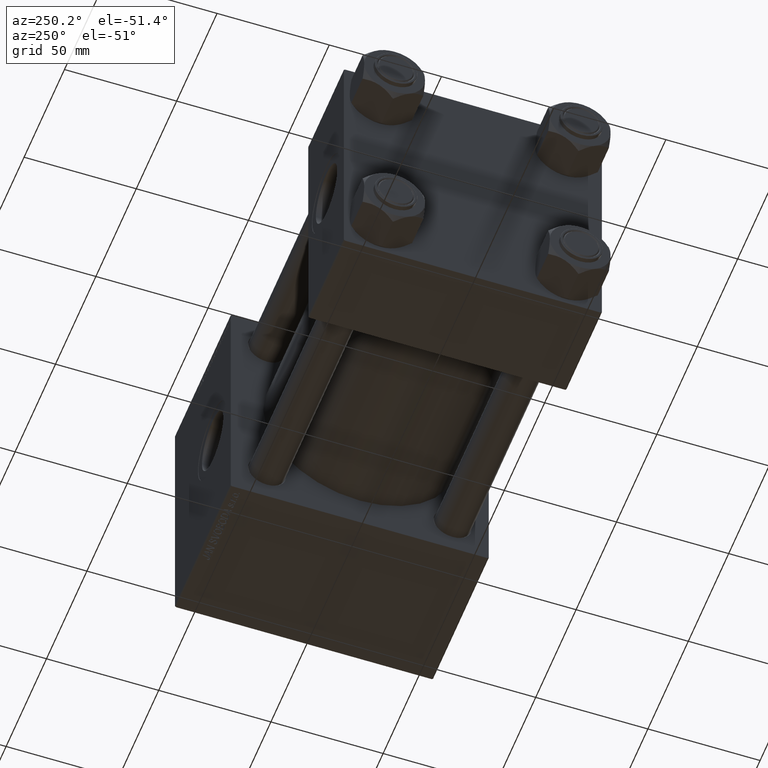
[diagram: clean part render]
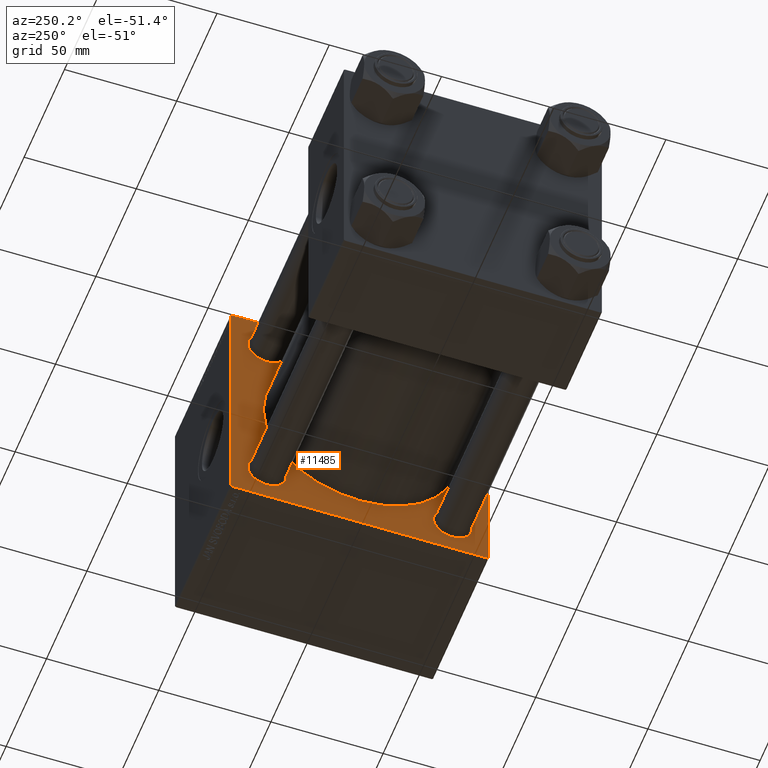
[diagram: same view with one face highlighted and labeled with its STEP entity id]
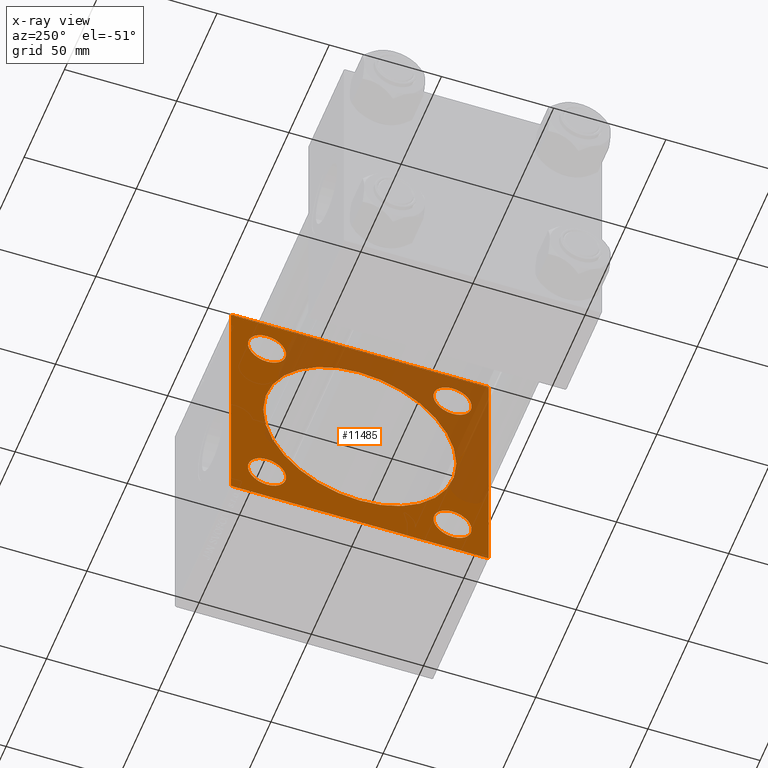
[diagram: x-ray of the same camera — body ghosted, the highlighted face saturated]
A machine part, auxiliary view. The second image highlights one B-rep face of the part: STEP entity #11485.
The next image is the same camera in x-ray: the body ghosted, the highlighted face saturated — about 40% of this face is hidden behind the body in this view.
In plain terms, the highlighted planar face has unit normal (-1, 0, 0).
Its self-contained STEP definition (entity closure, byte-faithful):
#168 = ORIENTED_EDGE ( 'NONE', *, *, #39623, .T. ) ;
#211 = DIRECTION ( 'NONE',  ( 0.000000000000000000, 0.000000000000000000, 1.000000000000000000 ) ) ;
#490 = DIRECTION ( 'NONE',  ( 0.000000000000000000, 0.000000000000000000, -1.000000000000000000 ) ) ;
#719 = CARTESIAN_POINT ( 'NONE',  ( 140.0000000000000000, 57.50000000000000000, 57.00000000000000711 ) ) ;
#921 = ORIENTED_EDGE ( 'NONE', *, *, #15588, .T. ) ;
#1000 = CARTESIAN_POINT ( 'NONE',  ( 140.0000000000000000, 57.50000000000000000, -56.99999999999999289 ) ) ;
#1309 = AXIS2_PLACEMENT_3D ( 'NONE', #16990, #17484, #4940 ) ;
#1420 = DIRECTION ( 'NONE',  ( 0.000000000000000000, 0.000000000000000000, -1.000000000000000000 ) ) ;
#1453 = CARTESIAN_POINT ( 'NONE',  ( 140.0000000000000000, 57.24999999999840838, -57.25000000000157740 ) ) ;
#1528 = ORIENTED_EDGE ( 'NONE', *, *, #44229, .T. ) ;
#1831 = EDGE_CURVE ( 'NONE', #1915, #46350, #41980, .T. ) ;
#1915 = VERTEX_POINT ( 'NONE', #15109 ) ;
#1944 = CARTESIAN_POINT ( 'NONE',  ( 140.0000000000000000, 41.34999999999999432, -41.35000000000000142 ) ) ;
#1986 = VERTEX_POINT ( 'NONE', #719 ) ;
#2506 = DIRECTION ( 'NONE',  ( 0.000000000000000000, 0.000000000000000000, -1.000000000000000000 ) ) ;
#2770 = ORIENTED_EDGE ( 'NONE', *, *, #4931, .T. ) ;
#2786 = EDGE_CURVE ( 'NONE', #28476, #32453, #35718, .T. ) ;
#2950 = VERTEX_POINT ( 'NONE', #30821 ) ;
#3428 = CARTESIAN_POINT ( 'NONE',  ( 140.0000000000000000, -41.34999999999998721, 32.85000000000000142 ) ) ;
#3631 = VERTEX_POINT ( 'NONE', #24784 ) ;
#4099 = LINE ( 'NONE', #27915, #14578 ) ;
#4190 = CARTESIAN_POINT ( 'NONE',  ( 140.0000000000000000, -41.34999999999998721, 41.35000000000000853 ) ) ;
#4355 = CARTESIAN_POINT ( 'NONE',  ( 140.0000000000000000, -41.34999999999998721, 41.35000000000000853 ) ) ;
#4407 = CARTESIAN_POINT ( 'NONE',  ( 140.0000000000000000, 57.00000000000002842, 57.50000000000000711 ) ) ;
#4666 = CARTESIAN_POINT ( 'NONE',  ( 140.0000000000000000, 41.34999999999999432, 41.35000000000000142 ) ) ;
#4931 = EDGE_CURVE ( 'NONE', #27781, #12928, #37027, .T. ) ;
#4940 = DIRECTION ( 'NONE',  ( 0.000000000000000000, 0.000000000000000000, -1.000000000000000000 ) ) ;
#5008 = FACE_BOUND ( 'NONE', #15307, .T. ) ;
#5021 = AXIS2_PLACEMENT_3D ( 'NONE', #40121, #47794, #19898 ) ;
#5094 = AXIS2_PLACEMENT_3D ( 'NONE', #4666, #23623, #35897 ) ;
#5538 = ORIENTED_EDGE ( 'NONE', *, *, #48764, .T. ) ;
#6367 = LINE ( 'NONE', #21979, #12813 ) ;
#6870 = EDGE_CURVE ( 'NONE', #28476, #1986, #26829, .T. ) ;
#6907 = DIRECTION ( 'NONE',  ( 0.000000000000000000, -1.000000000000000000, -1.206764157201257291E-16 ) ) ;
#8230 = DIRECTION ( 'NONE',  ( 0.000000000000000000, 0.000000000000000000, 1.000000000000000000 ) ) ;
#8550 = DIRECTION ( 'NONE',  ( 0.000000000000000000, 0.000000000000000000, 1.000000000000000000 ) ) ;
#8843 = VERTEX_POINT ( 'NONE', #50351 ) ;
#9297 = CIRCLE ( 'NONE', #24008, 8.500000000000007105 ) ;
#9407 = CIRCLE ( 'NONE', #26585, 8.500000000000007105 ) ;
#9886 = VERTEX_POINT ( 'NONE', #33118 ) ;
#10333 = CARTESIAN_POINT ( 'NONE',  ( 140.0000000000000000, -41.34999999999998721, -49.85000000000002274 ) ) ;
#10526 = ORIENTED_EDGE ( 'NONE', *, *, #6870, .T. ) ;
#11485 = ADVANCED_FACE ( 'NONE', ( #21379, #5008, #36241, #17293, #25476, #13206 ), #43926, .T. ) ;
#12455 = DIRECTION ( 'NONE',  ( 1.000000000000000000, 0.000000000000000000, 0.000000000000000000 ) ) ;
#12572 = VECTOR ( 'NONE', #6907, 1000.000000000000000 ) ;
#12648 = AXIS2_PLACEMENT_3D ( 'NONE', #12973, #12455, #1420 ) ;
#12761 = DIRECTION ( 'NONE',  ( -0.000000000000000000, 0.7071067811865524577, 0.7071067811865426878 ) ) ;
#12813 = VECTOR ( 'NONE', #2506, 1000.000000000000000 ) ;
#12928 = VERTEX_POINT ( 'NONE', #30021 ) ;
#12973 = CARTESIAN_POINT ( 'NONE',  ( 140.0000000000000000, -2.602085213965210642E-15, 0.000000000000000000 ) ) ;
#13006 = LINE ( 'NONE', #1453, #50463 ) ;
#13206 = FACE_OUTER_BOUND ( 'NONE', #45961, .T. ) ;
#13535 = CIRCLE ( 'NONE', #33957, 8.500000000000007105 ) ;
#13864 = ORIENTED_EDGE ( 'NONE', *, *, #2786, .F. ) ;
#14578 = VECTOR ( 'NONE', #490, 1000.000000000000000 ) ;
#14802 = DIRECTION ( 'NONE',  ( 0.000000000000000000, 0.7071067811865279218, -0.7071067811865671127 ) ) ;
#15109 = CARTESIAN_POINT ( 'NONE',  ( 140.0000000000000000, 57.00000000000000000, -57.49999999999996447 ) ) ;
#15307 = EDGE_LOOP ( 'NONE', ( #40970, #19635 ) ) ;
#15588 = EDGE_CURVE ( 'NONE', #46350, #44838, #42783, .T. ) ;
#16477 = ORIENTED_EDGE ( 'NONE', *, *, #27891, .T. ) ;
#16990 = CARTESIAN_POINT ( 'NONE',  ( 140.0000000000000000, -2.602085213965210642E-15, 0.000000000000000000 ) ) ;
#17083 = DIRECTION ( 'NONE',  ( 1.000000000000000000, -0.000000000000000000, 0.000000000000000000 ) ) ;
#17293 = FACE_BOUND ( 'NONE', #33362, .T. ) ;
#17340 = CIRCLE ( 'NONE', #5094, 8.500000000000007105 ) ;
#17484 = DIRECTION ( 'NONE',  ( 1.000000000000000000, 0.000000000000000000, 0.000000000000000000 ) ) ;
#17531 = EDGE_CURVE ( 'NONE', #3631, #44838, #4099, .T. ) ;
#18299 = VECTOR ( 'NONE', #14802, 1000.000000000000000 ) ;
#18495 = CIRCLE ( 'NONE', #1309, 43.00000000000000000 ) ;
#18776 = EDGE_CURVE ( 'NONE', #3631, #32453, #43978, .T. ) ;
#19430 = VECTOR ( 'NONE', #34345, 1000.000000000000000 ) ;
#19635 = ORIENTED_EDGE ( 'NONE', *, *, #29287, .T. ) ;
#19709 = AXIS2_PLACEMENT_3D ( 'NONE', #30726, #22271, #38144 ) ;
#19898 = DIRECTION ( 'NONE',  ( 0.000000000000000000, 0.000000000000000000, 1.000000000000000000 ) ) ;
#20079 = AXIS2_PLACEMENT_3D ( 'NONE', #32912, #28577, #28318 ) ;
#21040 = VERTEX_POINT ( 'NONE', #3428 ) ;
#21379 = FACE_BOUND ( 'NONE', #29422, .T. ) ;
#21979 = CARTESIAN_POINT ( 'NONE',  ( 140.0000000000000000, 57.50000000000000000, 57.50000000000000711 ) ) ;
#22263 = CARTESIAN_POINT ( 'NONE',  ( 140.0000000000000000, 57.50000000000000000, -57.49999999999996447 ) ) ;
#22271 = DIRECTION ( 'NONE',  ( 1.000000000000000000, -0.000000000000000000, 0.000000000000000000 ) ) ;
#23107 = CARTESIAN_POINT ( 'NONE',  ( 140.0000000000000000, 41.34999999999999432, -32.84999999999999432 ) ) ;
#23623 = DIRECTION ( 'NONE',  ( 1.000000000000000000, -0.000000000000000000, 0.000000000000000000 ) ) ;
#23811 = DIRECTION ( 'NONE',  ( 1.000000000000000000, -0.000000000000000000, 0.000000000000000000 ) ) ;
#24008 = AXIS2_PLACEMENT_3D ( 'NONE', #31529, #34174, #8230 ) ;
#24202 = DIRECTION ( 'NONE',  ( 0.000000000000000000, -1.000000000000000000, -1.206764157201257291E-16 ) ) ;
#24423 = VERTEX_POINT ( 'NONE', #1000 ) ;
#24784 = CARTESIAN_POINT ( 'NONE',  ( 140.0000000000000000, -57.49999999999999289, 57.00000000000004974 ) ) ;
#25010 = DIRECTION ( 'NONE',  ( 0.000000000000000000, 0.000000000000000000, 1.000000000000000000 ) ) ;
#25476 = FACE_BOUND ( 'NONE', #44021, .T. ) ;
#25588 = CARTESIAN_POINT ( 'NONE',  ( 140.0000000000000000, -57.49999999999999289, -56.99999999999997868 ) ) ;
#25898 = CARTESIAN_POINT ( 'NONE',  ( 140.0000000000000000, -41.34999999999998721, -32.85000000000000142 ) ) ;
#25945 = VERTEX_POINT ( 'NONE', #10333 ) ;
#26300 = EDGE_CURVE ( 'NONE', #40163, #9886, #27901, .T. ) ;
#26585 = AXIS2_PLACEMENT_3D ( 'NONE', #47580, #43748, #211 ) ;
#26829 = LINE ( 'NONE', #34250, #18299 ) ;
#27092 = ORIENTED_EDGE ( 'NONE', *, *, #18776, .T. ) ;
#27781 = VERTEX_POINT ( 'NONE', #50109 ) ;
#27796 = CARTESIAN_POINT ( 'NONE',  ( 140.0000000000000000, 57.50000000000000000, 57.50000000000000711 ) ) ;
#27891 = EDGE_CURVE ( 'NONE', #2950, #42355, #40178, .T. ) ;
#27901 = CIRCLE ( 'NONE', #19709, 8.500000000000007105 ) ;
#27915 = CARTESIAN_POINT ( 'NONE',  ( 140.0000000000000000, -57.49999999999999289, 57.49999999999999289 ) ) ;
#28318 = DIRECTION ( 'NONE',  ( -0.000000000000000000, 0.000000000000000000, 1.000000000000000000 ) ) ;
#28476 = VERTEX_POINT ( 'NONE', #4407 ) ;
#28577 = DIRECTION ( 'NONE',  ( -1.000000000000000000, 0.000000000000000000, -0.000000000000000000 ) ) ;
#29287 = EDGE_CURVE ( 'NONE', #9886, #40163, #17340, .T. ) ;
#29422 = EDGE_LOOP ( 'NONE', ( #37906, #1528 ) ) ;
#30021 = CARTESIAN_POINT ( 'NONE',  ( 140.0000000000000000, -2.602085213965210642E-15, 43.00000000000000000 ) ) ;
#30726 = CARTESIAN_POINT ( 'NONE',  ( 140.0000000000000000, 41.34999999999999432, 41.35000000000000142 ) ) ;
#30821 = CARTESIAN_POINT ( 'NONE',  ( 140.0000000000000000, 41.34999999999999432, -49.85000000000001563 ) ) ;
#31529 = CARTESIAN_POINT ( 'NONE',  ( 140.0000000000000000, -41.34999999999998721, -41.35000000000000853 ) ) ;
#31760 = EDGE_LOOP ( 'NONE', ( #39404, #16477 ) ) ;
#31972 = VERTEX_POINT ( 'NONE', #25898 ) ;
#32214 = CARTESIAN_POINT ( 'NONE',  ( 140.0000000000000000, -57.24999999999962341, 57.25000000000041211 ) ) ;
#32317 = CARTESIAN_POINT ( 'NONE',  ( 140.0000000000000000, 41.34999999999999432, 49.85000000000001563 ) ) ;
#32453 = VERTEX_POINT ( 'NONE', #34778 ) ;
#32912 = CARTESIAN_POINT ( 'NONE',  ( 140.0000000000000000, 0.000000000000000000, 0.000000000000000000 ) ) ;
#33118 = CARTESIAN_POINT ( 'NONE',  ( 140.0000000000000000, 41.34999999999999432, 32.84999999999999432 ) ) ;
#33362 = EDGE_LOOP ( 'NONE', ( #168, #38525 ) ) ;
#33957 = AXIS2_PLACEMENT_3D ( 'NONE', #1944, #17083, #25010 ) ;
#34174 = DIRECTION ( 'NONE',  ( 1.000000000000000000, -0.000000000000000000, 0.000000000000000000 ) ) ;
#34250 = CARTESIAN_POINT ( 'NONE',  ( 140.0000000000000000, 57.25000000000159872, 57.24999999999842970 ) ) ;
#34345 = DIRECTION ( 'NONE',  ( 0.000000000000000000, -0.7071067811865328068, 0.7071067811865622277 ) ) ;
#34410 = CARTESIAN_POINT ( 'NONE',  ( 140.0000000000000000, -57.00000000000001421, -57.49999999999997868 ) ) ;
#34778 = CARTESIAN_POINT ( 'NONE',  ( 140.0000000000000000, -57.00000000000004263, 57.49999999999999289 ) ) ;
#35718 = LINE ( 'NONE', #27796, #43612 ) ;
#35897 = DIRECTION ( 'NONE',  ( 0.000000000000000000, 0.000000000000000000, 1.000000000000000000 ) ) ;
#36241 = FACE_BOUND ( 'NONE', #31760, .T. ) ;
#36364 = EDGE_CURVE ( 'NONE', #25945, #31972, #9297, .T. ) ;
#36365 = CIRCLE ( 'NONE', #42911, 8.500000000000007105 ) ;
#36441 = DIRECTION ( 'NONE',  ( 1.000000000000000000, -0.000000000000000000, 0.000000000000000000 ) ) ;
#37027 = CIRCLE ( 'NONE', #12648, 43.00000000000000000 ) ;
#37906 = ORIENTED_EDGE ( 'NONE', *, *, #39001, .T. ) ;
#38144 = DIRECTION ( 'NONE',  ( 0.000000000000000000, 0.000000000000000000, 1.000000000000000000 ) ) ;
#38525 = ORIENTED_EDGE ( 'NONE', *, *, #36364, .T. ) ;
#39001 = EDGE_CURVE ( 'NONE', #8843, #21040, #36365, .T. ) ;
#39404 = ORIENTED_EDGE ( 'NONE', *, *, #40888, .T. ) ;
#39432 = DIRECTION ( 'NONE',  ( 0.000000000000000000, 0.000000000000000000, 1.000000000000000000 ) ) ;
#39623 = EDGE_CURVE ( 'NONE', #31972, #25945, #9407, .T. ) ;
#40121 = CARTESIAN_POINT ( 'NONE',  ( 140.0000000000000000, 41.34999999999999432, -41.35000000000000142 ) ) ;
#40163 = VERTEX_POINT ( 'NONE', #32317 ) ;
#40178 = CIRCLE ( 'NONE', #5021, 8.500000000000007105 ) ;
#40888 = EDGE_CURVE ( 'NONE', #42355, #2950, #13535, .T. ) ;
#40970 = ORIENTED_EDGE ( 'NONE', *, *, #26300, .T. ) ;
#41980 = LINE ( 'NONE', #22263, #12572 ) ;
#42355 = VERTEX_POINT ( 'NONE', #23107 ) ;
#42542 = EDGE_CURVE ( 'NONE', #1986, #24423, #6367, .T. ) ;
#42618 = ORIENTED_EDGE ( 'NONE', *, *, #17531, .F. ) ;
#42783 = LINE ( 'NONE', #50199, #19430 ) ;
#42911 = AXIS2_PLACEMENT_3D ( 'NONE', #4190, #36441, #8550 ) ;
#42947 = AXIS2_PLACEMENT_3D ( 'NONE', #4355, #23811, #39432 ) ;
#43612 = VECTOR ( 'NONE', #24202, 1000.000000000000000 ) ;
#43748 = DIRECTION ( 'NONE',  ( 1.000000000000000000, -0.000000000000000000, 0.000000000000000000 ) ) ;
#43780 = CIRCLE ( 'NONE', #42947, 8.500000000000007105 ) ;
#43926 = PLANE ( 'NONE',  #20079 ) ;
#43978 = LINE ( 'NONE', #32214, #44733 ) ;
#44021 = EDGE_LOOP ( 'NONE', ( #45142, #2770 ) ) ;
#44213 = DIRECTION ( 'NONE',  ( -0.000000000000000000, -0.7071067811865671127, -0.7071067811865279218 ) ) ;
#44229 = EDGE_CURVE ( 'NONE', #21040, #8843, #43780, .T. ) ;
#44505 = ORIENTED_EDGE ( 'NONE', *, *, #42542, .T. ) ;
#44733 = VECTOR ( 'NONE', #12761, 1000.000000000000000 ) ;
#44838 = VERTEX_POINT ( 'NONE', #25588 ) ;
#45142 = ORIENTED_EDGE ( 'NONE', *, *, #46563, .T. ) ;
#45961 = EDGE_LOOP ( 'NONE', ( #48306, #921, #42618, #27092, #13864, #10526, #44505, #5538 ) ) ;
#46350 = VERTEX_POINT ( 'NONE', #34410 ) ;
#46563 = EDGE_CURVE ( 'NONE', #12928, #27781, #18495, .T. ) ;
#47580 = CARTESIAN_POINT ( 'NONE',  ( 140.0000000000000000, -41.34999999999998721, -41.35000000000000853 ) ) ;
#47794 = DIRECTION ( 'NONE',  ( 1.000000000000000000, -0.000000000000000000, 0.000000000000000000 ) ) ;
#48306 = ORIENTED_EDGE ( 'NONE', *, *, #1831, .T. ) ;
#48764 = EDGE_CURVE ( 'NONE', #24423, #1915, #13006, .T. ) ;
#50109 = CARTESIAN_POINT ( 'NONE',  ( 140.0000000000000000, 2.663896022368408223E-15, -43.00000000000000000 ) ) ;
#50199 = CARTESIAN_POINT ( 'NONE',  ( 140.0000000000000000, -57.25000000000117950, -57.24999999999879918 ) ) ;
#50351 = CARTESIAN_POINT ( 'NONE',  ( 140.0000000000000000, -41.34999999999998721, 49.85000000000002274 ) ) ;
#50463 = VECTOR ( 'NONE', #44213, 1000.000000000000000 ) ;